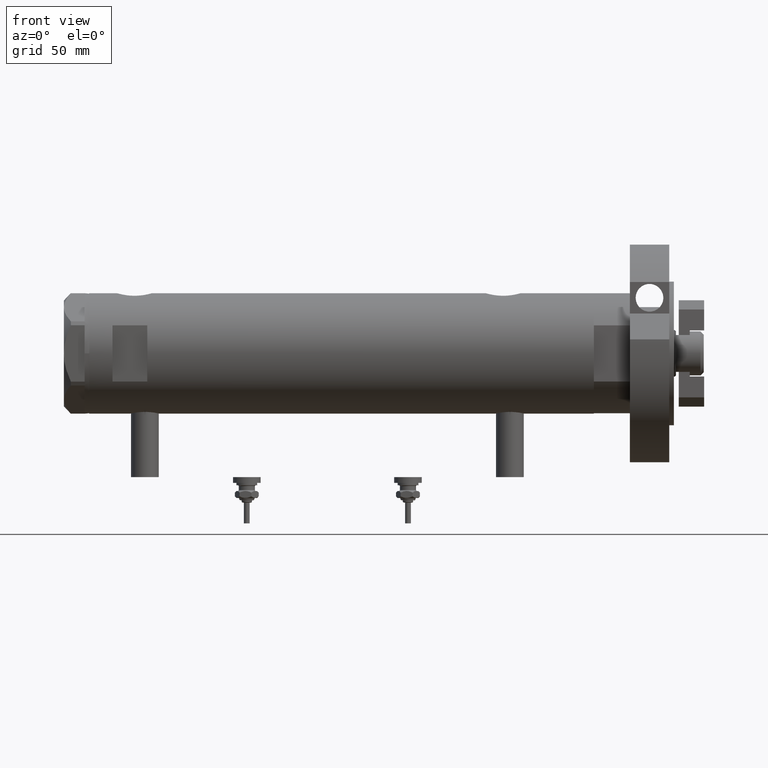
[diagram: clean part render]
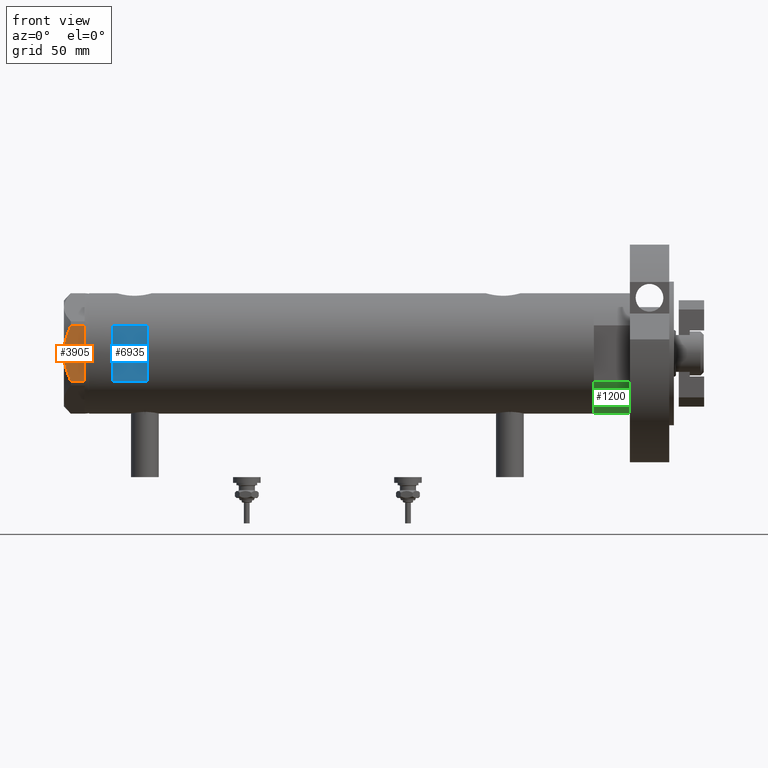
[diagram: same view with three faces highlighted in distinct colors, each labeled with its STEP entity id]
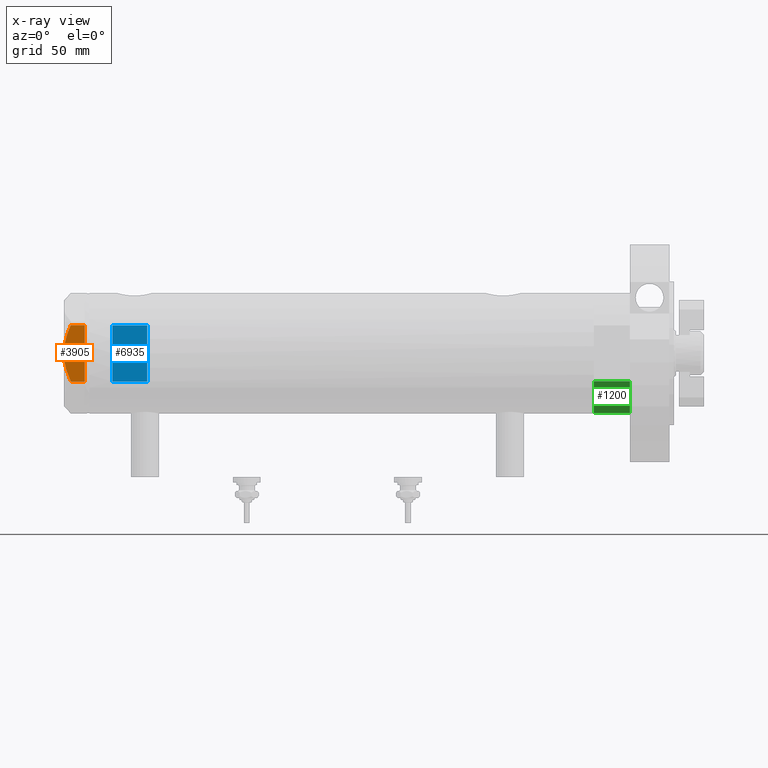
[diagram: x-ray of the same camera — body ghosted, the three highlighted faces saturated]
A machine part, front view with three faces highlighted in distinct colors.
The next image is the same camera in x-ray (body ghosted, the three faces saturated) — at least one of them is partly hidden behind the body in this view.
Their STEP definitions:

[orange] entity #3905 — the highlighted planar face has unit normal (-0, 1, -0).
#160 = VECTOR ( 'NONE', #4401, 1000.000000000000000 ) ;
#163 = CARTESIAN_POINT ( 'NONE',  ( -22.99999999999990763, -12.15905619136147386, 9.000000000000000000 ) ) ;
#237 = LINE ( 'NONE', #5739, #2079 ) ;
#349 = CARTESIAN_POINT ( 'NONE',  ( -22.99999999999997158, 6.734330413511419700, 8.039389741252668031 ) ) ;
#360 = VERTEX_POINT ( 'NONE', #8393 ) ;
#398 = EDGE_CURVE ( 'NONE', #4460, #507, #2392, .T. ) ;
#507 = VERTEX_POINT ( 'NONE', #3548 ) ;
#514 = CARTESIAN_POINT ( 'NONE',  ( -22.99999999999999645, 13.27905619136132032, 9.000000000000000000 ) ) ;
#642 = CARTESIAN_POINT ( 'NONE',  ( -22.99999999999993960, -2.119709279061923191, 8.908535212173198659 ) ) ;
#794 = LINE ( 'NONE', #163, #1220 ) ;
#1220 = VECTOR ( 'NONE', #3639, 1000.000000000000000 ) ;
#1391 = ORIENTED_EDGE ( 'NONE', *, *, #3795, .T. ) ;
#1402 = CARTESIAN_POINT ( 'NONE',  ( -22.99999999999992895, -5.228918809624124364, 8.433337033849854336 ) ) ;
#1471 = EDGE_CURVE ( 'NONE', #8560, #4296, #7157, .T. ) ;
#1579 = ORIENTED_EDGE ( 'NONE', *, *, #1471, .F. ) ;
#1695 = DIRECTION ( 'NONE',  ( 3.527173405730720141E-15, -1.000000000000000000, 0.000000000000000000 ) ) ;
#1722 = CARTESIAN_POINT ( 'NONE',  ( -22.99999999999995381, 2.122900714018063795, 9.000000000000092371 ) ) ;
#1865 = CARTESIAN_POINT ( 'NONE',  ( -22.99999999999996803, 4.194757081058972936, 8.703000351525203016 ) ) ;
#2016 = CARTESIAN_POINT ( 'NONE',  ( -22.99999999999991118, -11.20155944044816287, 6.421102682632757741 ) ) ;
#2060 = CARTESIAN_POINT ( 'NONE',  ( -22.99999999999999289, 12.15905619136133176, 0.000000000000000000 ) ) ;
#2079 = VECTOR ( 'NONE', #1695, 1000.000000000000000 ) ;
#2392 = LINE ( 'NONE', #7105, #5516 ) ;
#2486 = CARTESIAN_POINT ( 'NONE',  ( -22.99999999999996803, 7.239756182922199024, 7.892186063422847120 ) ) ;
#2678 = CARTESIAN_POINT ( 'NONE',  ( -22.99999999999991118, -10.22738952213794761, 6.832470313674783746 ) ) ;
#2733 = VERTEX_POINT ( 'NONE', #2060 ) ;
#2739 = VERTEX_POINT ( 'NONE', #6921 ) ;
#3495 = CARTESIAN_POINT ( 'NONE',  ( -22.99999999999999289, 12.15905619136133176, 9.000000000000000000 ) ) ;
#3548 = CARTESIAN_POINT ( 'NONE',  ( -22.99999999999990763, -12.15905619136147386, 0.000000000000000000 ) ) ;
#3639 = DIRECTION ( 'NONE',  ( 0.000000000000000000, 0.000000000000000000, 1.000000000000000000 ) ) ;
#3696 = CARTESIAN_POINT ( 'NONE',  ( -22.99999999999999645, 13.27905619136132032, 0.000000000000000000 ) ) ;
#3759 = DIRECTION ( 'NONE',  ( 3.527173405730720141E-15, -1.000000000000000000, 0.000000000000000000 ) ) ;
#3795 = EDGE_CURVE ( 'NONE', #507, #4296, #794, .T. ) ;
#3796 = CARTESIAN_POINT ( 'NONE',  ( -22.99999999999998579, 10.23890159976122050, 6.840812428290914404 ) ) ;
#3905 = ADVANCED_FACE ( 'NONE', ( #8413 ), #4386, .F. ) ;
#4224 = EDGE_LOOP ( 'NONE', ( #4306, #5372, #4917, #8385, #5028, #1391, #1579 ) ) ;
#4243 = EDGE_CURVE ( 'NONE', #360, #4460, #237, .T. ) ;
#4296 = VERTEX_POINT ( 'NONE', #7997 ) ;
#4303 = AXIS2_PLACEMENT_3D ( 'NONE', #514, #4350, #7041 ) ;
#4306 = ORIENTED_EDGE ( 'NONE', *, *, #5530, .F. ) ;
#4350 = DIRECTION ( 'NONE',  ( 1.000000000000000000, 3.527173405730720141E-15, -0.000000000000000000 ) ) ;
#4366 = CARTESIAN_POINT ( 'NONE',  ( -22.99999999999997513, 8.748091966971378142, 7.396818978284571244 ) ) ;
#4386 = PLANE ( 'NONE',  #4303 ) ;
#4401 = DIRECTION ( 'NONE',  ( 3.527173405730720141E-15, -1.000000000000000000, 0.000000000000000000 ) ) ;
#4451 = EDGE_CURVE ( 'NONE', #2739, #2733, #4977, .T. ) ;
#4460 = VERTEX_POINT ( 'NONE', #6352 ) ;
#4695 = CARTESIAN_POINT ( 'NONE',  ( -22.99999999999990763, -11.68282849742335827, 6.206372352695425754 ) ) ;
#4917 = ORIENTED_EDGE ( 'NONE', *, *, #6197, .T. ) ;
#4977 = LINE ( 'NONE', #3495, #8239 ) ;
#5028 = ORIENTED_EDGE ( 'NONE', *, *, #398, .T. ) ;
#5372 = ORIENTED_EDGE ( 'NONE', *, *, #4451, .T. ) ;
#5394 = CARTESIAN_POINT ( 'NONE',  ( -22.99999999999992184, -7.253003311474388148, 7.903276810347638737 ) ) ;
#5516 = VECTOR ( 'NONE', #3759, 1000.000000000000000 ) ;
#5530 = EDGE_CURVE ( 'NONE', #2739, #8560, #6629, .T. ) ;
#5617 = CARTESIAN_POINT ( 'NONE',  ( -23.00000000000004619, -8.112498833180673323E-14, 9.000000000000000000 ) ) ;
#5739 = CARTESIAN_POINT ( 'NONE',  ( -22.99999999999999645, 13.27905619136132032, 0.000000000000000000 ) ) ;
#6197 = EDGE_CURVE ( 'NONE', #2733, #360, #6530, .T. ) ;
#6352 = CARTESIAN_POINT ( 'NONE',  ( -22.99999999999990763, -12.12435565298232021, 0.000000000000000000 ) ) ;
#6406 = CARTESIAN_POINT ( 'NONE',  ( -22.99999999999998224, 8.246028007352361300, 7.571131808646907935 ) ) ;
#6488 = CARTESIAN_POINT ( 'NONE',  ( -22.99999999999998934, 11.20825071633916359, 6.428173306378450746 ) ) ;
#6530 = LINE ( 'NONE', #3696, #160 ) ;
#6602 = CARTESIAN_POINT ( 'NONE',  ( -22.99999999999995026, -1.063773509315737442, 8.981438083606830602 ) ) ;
#6629 = B_SPLINE_CURVE_WITH_KNOTS ( 'NONE', 3,
 ( #8392, #6488, #3796, #4366, #6406, #2486, #349, #1865, #1722, #7230 ),
 .UNSPECIFIED., .F., .F.,
 ( 4, 2, 2, 2, 4 ),
 ( 0.03516523594057416324, 0.03831677594541234300, 0.03989254594783143981, 0.04146831595025052969, 0.04777139595992690307 ),
 .UNSPECIFIED. ) ;
#6687 = CARTESIAN_POINT ( 'NONE',  ( -23.00000000000004619, -8.112498833180673323E-14, 9.000000000000000000 ) ) ;
#6773 = CARTESIAN_POINT ( 'NONE',  ( -22.99999999999991829, -9.734726261263297431, 7.028924700095662281 ) ) ;
#6921 = CARTESIAN_POINT ( 'NONE',  ( -22.99999999999999289, 12.15905619136133176, 5.983800287807616414 ) ) ;
#7041 = DIRECTION ( 'NONE',  ( -3.527173405730720141E-15, 1.000000000000000000, 0.000000000000000000 ) ) ;
#7105 = CARTESIAN_POINT ( 'NONE',  ( -22.99999999999999645, 13.27905619136132032, 0.000000000000000000 ) ) ;
#7157 = B_SPLINE_CURVE_WITH_KNOTS ( 'NONE', 3,
 ( #6687, #8593, #6602, #642, #7432, #7952, #1402, #5394, #8686, #6773, #2678, #2016, #4695, #7295 ),
 .UNSPECIFIED., .F., .F.,
 ( 4, 2, 2, 2, 2, 2, 4 ),
 ( 0.04777139595992690307, 0.04934380568070229761, 0.05091621540147769215, 0.05406103484302848122, 0.05720585428457927030, 0.05877826400535466483, 0.06035067372613005937 ),
 .UNSPECIFIED. ) ;
#7230 = CARTESIAN_POINT ( 'NONE',  ( -23.00000000000004619, -8.112498833180673323E-14, 9.000000000000000000 ) ) ;
#7295 = CARTESIAN_POINT ( 'NONE',  ( -22.99999999999990763, -12.15905619136147564, 5.983800287807627072 ) ) ;
#7432 = CARTESIAN_POINT ( 'NONE',  ( -22.99999999999993960, -2.643615312305158671, 8.854304560636265364 ) ) ;
#7952 = CARTESIAN_POINT ( 'NONE',  ( -22.99999999999993250, -4.203926054641964782, 8.641681223122507305 ) ) ;
#7997 = CARTESIAN_POINT ( 'NONE',  ( -22.99999999999990763, -12.15905619136147564, 5.983800287807627072 ) ) ;
#8239 = VECTOR ( 'NONE', #8268, 1000.000000000000000 ) ;
#8268 = DIRECTION ( 'NONE',  ( 0.000000000000000000, 0.000000000000000000, -1.000000000000000000 ) ) ;
#8385 = ORIENTED_EDGE ( 'NONE', *, *, #4243, .T. ) ;
#8392 = CARTESIAN_POINT ( 'NONE',  ( -22.99999999999999289, 12.15905619136133176, 5.983800287807616414 ) ) ;
#8393 = CARTESIAN_POINT ( 'NONE',  ( -22.99999999999999289, 12.12435565298215856, 0.000000000000000000 ) ) ;
#8413 = FACE_OUTER_BOUND ( 'NONE', #4224, .T. ) ;
#8560 = VERTEX_POINT ( 'NONE', #5617 ) ;
#8593 = CARTESIAN_POINT ( 'NONE',  ( -22.99999999999995737, -0.5295934231897764244, 9.000000000000092371 ) ) ;
#8686 = CARTESIAN_POINT ( 'NONE',  ( -22.99999999999991829, -8.252113629125268801, 7.581642062680223226 ) ) ;

[blue] entity #6935 — the highlighted planar face has unit normal (-0, 1, 0).
#53 = EDGE_CURVE ( 'NONE', #8562, #7613, #6772, .T. ) ;
#68 = DIRECTION ( 'NONE',  ( 0.000000000000000000, 0.000000000000000000, 1.000000000000000000 ) ) ;
#193 = EDGE_CURVE ( 'NONE', #5976, #7613, #891, .T. ) ;
#498 = CARTESIAN_POINT ( 'NONE',  ( -12.12435565298214080, -23.00000000000000355, 83.95000000000001705 ) ) ;
#723 = CARTESIAN_POINT ( 'NONE',  ( 12.12435565298214080, -23.00000000000000355, -108.9500000000000028 ) ) ;
#891 = LINE ( 'NONE', #6924, #7626 ) ;
#1254 = CARTESIAN_POINT ( 'NONE',  ( -12.12435565298214080, -23.00000000000000355, -108.9500000000000028 ) ) ;
#1762 = VECTOR ( 'NONE', #2181, 1000.000000000000000 ) ;
#2044 = CARTESIAN_POINT ( 'NONE',  ( -26.00000000000000355, -23.00000000000000355, 98.95000000000001705 ) ) ;
#2181 = DIRECTION ( 'NONE',  ( 1.000000000000000000, -0.000000000000000000, -0.000000000000000000 ) ) ;
#2661 = DIRECTION ( 'NONE',  ( 0.000000000000000000, -0.000000000000000000, 1.000000000000000000 ) ) ;
#2801 = EDGE_CURVE ( 'NONE', #7810, #8562, #7663, .T. ) ;
#3008 = EDGE_CURVE ( 'NONE', #5976, #7810, #3939, .T. ) ;
#3034 = DIRECTION ( 'NONE',  ( 1.000000000000000000, -0.000000000000000000, -0.000000000000000000 ) ) ;
#3312 = PLANE ( 'NONE',  #4125 ) ;
#3939 = LINE ( 'NONE', #1254, #7538 ) ;
#4125 = AXIS2_PLACEMENT_3D ( 'NONE', #2044, #4587, #2661 ) ;
#4587 = DIRECTION ( 'NONE',  ( 0.000000000000000000, 1.000000000000000000, 0.000000000000000000 ) ) ;
#4646 = ORIENTED_EDGE ( 'NONE', *, *, #2801, .T. ) ;
#5170 = CARTESIAN_POINT ( 'NONE',  ( 12.12435565298214080, -23.00000000000000355, 98.95000000000001705 ) ) ;
#5692 = CARTESIAN_POINT ( 'NONE',  ( -12.12435565298214080, -23.00000000000000355, 98.95000000000001705 ) ) ;
#5976 = VERTEX_POINT ( 'NONE', #5692 ) ;
#6772 = LINE ( 'NONE', #723, #7901 ) ;
#6924 = CARTESIAN_POINT ( 'NONE',  ( -26.00000000000000355, -23.00000000000000355, 98.95000000000001705 ) ) ;
#6935 = ADVANCED_FACE ( 'NONE', ( #7925 ), #3312, .F. ) ;
#7201 = EDGE_LOOP ( 'NONE', ( #8432, #4646, #8203, #7408 ) ) ;
#7408 = ORIENTED_EDGE ( 'NONE', *, *, #193, .F. ) ;
#7415 = DIRECTION ( 'NONE',  ( -0.000000000000000000, -0.000000000000000000, -1.000000000000000000 ) ) ;
#7538 = VECTOR ( 'NONE', #7415, 1000.000000000000000 ) ;
#7584 = CARTESIAN_POINT ( 'NONE',  ( -26.00000000000000355, -23.00000000000000355, 83.95000000000003126 ) ) ;
#7613 = VERTEX_POINT ( 'NONE', #5170 ) ;
#7626 = VECTOR ( 'NONE', #3034, 1000.000000000000000 ) ;
#7663 = LINE ( 'NONE', #7584, #1762 ) ;
#7810 = VERTEX_POINT ( 'NONE', #498 ) ;
#7901 = VECTOR ( 'NONE', #68, 1000.000000000000000 ) ;
#7925 = FACE_OUTER_BOUND ( 'NONE', #7201, .T. ) ;
#8203 = ORIENTED_EDGE ( 'NONE', *, *, #53, .T. ) ;
#8432 = ORIENTED_EDGE ( 'NONE', *, *, #3008, .T. ) ;
#8435 = CARTESIAN_POINT ( 'NONE',  ( 12.12435565298214080, -23.00000000000000355, 83.95000000000001705 ) ) ;
#8562 = VERTEX_POINT ( 'NONE', #8435 ) ;

[green] entity #1200 — the highlighted cylindrical surface (partial cylindrical patch) has radius 26 mm, axis along (-1, -0, 0).
#50 = EDGE_CURVE ( 'NONE', #8131, #5504, #3410, .T. ) ;
#191 = CARTESIAN_POINT ( 'NONE',  ( 0.000000000000000000, 0.000000000000000000, 15.50000000000000000 ) ) ;
#768 = AXIS2_PLACEMENT_3D ( 'NONE', #191, #856, #7032 ) ;
#796 = DIRECTION ( 'NONE',  ( 1.000000000000000000, 0.000000000000000000, 0.000000000000000000 ) ) ;
#829 = ORIENTED_EDGE ( 'NONE', *, *, #7766, .F. ) ;
#856 = DIRECTION ( 'NONE',  ( -0.000000000000000000, -0.000000000000000000, -1.000000000000000000 ) ) ;
#1200 = ADVANCED_FACE ( 'NONE', ( #1530 ), #4217, .T. ) ;
#1405 = LINE ( 'NONE', #5355, #6984 ) ;
#1530 = FACE_OUTER_BOUND ( 'NONE', #2965, .T. ) ;
#1604 = CARTESIAN_POINT ( 'NONE',  ( 12.12435565298215323, -22.99999999999999645, 0.000000000000000000 ) ) ;
#2024 = ORIENTED_EDGE ( 'NONE', *, *, #50, .F. ) ;
#2124 = CARTESIAN_POINT ( 'NONE',  ( 12.12435565298215323, -22.99999999999999645, 15.50000000000000000 ) ) ;
#2965 = EDGE_LOOP ( 'NONE', ( #829, #2024, #4216, #7317 ) ) ;
#3102 = DIRECTION ( 'NONE',  ( 1.000000000000000000, 0.000000000000000000, 0.000000000000000000 ) ) ;
#3206 = CARTESIAN_POINT ( 'NONE',  ( 0.000000000000000000, 0.000000000000000000, 15.50000000000000000 ) ) ;
#3410 = LINE ( 'NONE', #6730, #6656 ) ;
#3441 = CIRCLE ( 'NONE', #6678, 26.00000000000000355 ) ;
#3669 = CIRCLE ( 'NONE', #4377, 26.00000000000000355 ) ;
#3775 = VERTEX_POINT ( 'NONE', #6255 ) ;
#4156 = VERTEX_POINT ( 'NONE', #4277 ) ;
#4216 = ORIENTED_EDGE ( 'NONE', *, *, #6180, .T. ) ;
#4217 = CYLINDRICAL_SURFACE ( 'NONE', #768, 26.00000000000000355 ) ;
#4277 = CARTESIAN_POINT ( 'NONE',  ( 12.12435565298214080, 23.00000000000000355, 0.000000000000000000 ) ) ;
#4284 = EDGE_CURVE ( 'NONE', #4156, #3775, #1405, .T. ) ;
#4377 = AXIS2_PLACEMENT_3D ( 'NONE', #5463, #8144, #796 ) ;
#5355 = CARTESIAN_POINT ( 'NONE',  ( 12.12435565298215323, 23.00000000000000355, 0.000000000000000000 ) ) ;
#5463 = CARTESIAN_POINT ( 'NONE',  ( 0.000000000000000000, 0.000000000000000000, 0.000000000000000000 ) ) ;
#5504 = VERTEX_POINT ( 'NONE', #2124 ) ;
#6063 = DIRECTION ( 'NONE',  ( -0.000000000000000000, -0.000000000000000000, 1.000000000000000000 ) ) ;
#6180 = EDGE_CURVE ( 'NONE', #8131, #4156, #3669, .T. ) ;
#6255 = CARTESIAN_POINT ( 'NONE',  ( 12.12435565298214790, 23.00000000000000355, 15.50000000000000000 ) ) ;
#6434 = DIRECTION ( 'NONE',  ( 0.000000000000000000, 0.000000000000000000, 1.000000000000000000 ) ) ;
#6656 = VECTOR ( 'NONE', #6063, 1000.000000000000000 ) ;
#6678 = AXIS2_PLACEMENT_3D ( 'NONE', #3206, #6434, #3102 ) ;
#6730 = CARTESIAN_POINT ( 'NONE',  ( 12.12435565298215323, -22.99999999999999645, 0.000000000000000000 ) ) ;
#6984 = VECTOR ( 'NONE', #8689, 1000.000000000000000 ) ;
#7032 = DIRECTION ( 'NONE',  ( -1.000000000000000000, 0.000000000000000000, 0.000000000000000000 ) ) ;
#7317 = ORIENTED_EDGE ( 'NONE', *, *, #4284, .T. ) ;
#7766 = EDGE_CURVE ( 'NONE', #5504, #3775, #3441, .T. ) ;
#8131 = VERTEX_POINT ( 'NONE', #1604 ) ;
#8144 = DIRECTION ( 'NONE',  ( 0.000000000000000000, 0.000000000000000000, 1.000000000000000000 ) ) ;
#8689 = DIRECTION ( 'NONE',  ( -0.000000000000000000, -0.000000000000000000, 1.000000000000000000 ) ) ;